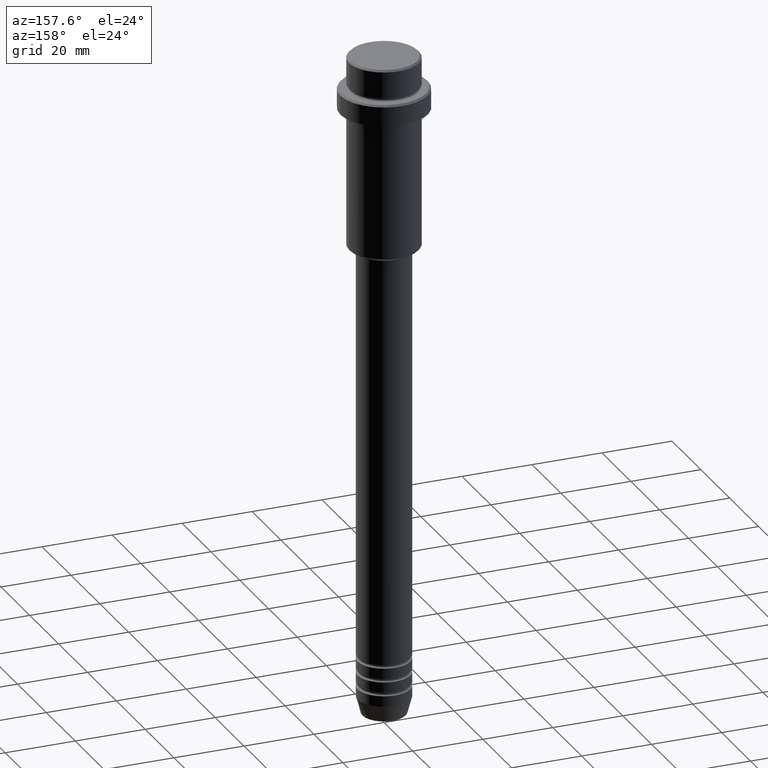
[diagram: clean part render]
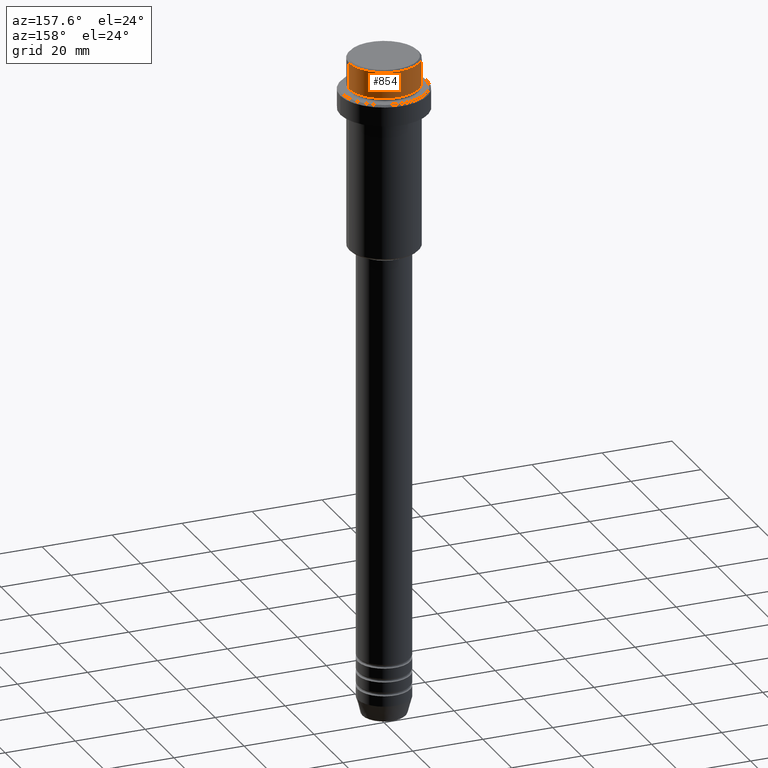
[diagram: same view with one face highlighted and labeled with its STEP entity id]
A machine part, auxiliary view. The second image highlights one B-rep face of the part: STEP entity #854.
In plain terms, the highlighted cylindrical surface (partial cylindrical patch) has radius 10 mm, axis along (-0, -0, 1).
Its self-contained STEP definition (entity closure, byte-faithful):
#115 = LINE ( 'NONE', #766, #978 ) ;
#148 = VERTEX_POINT ( 'NONE', #1083 ) ;
#158 = CIRCLE ( 'NONE', #1385, 9.999999999999998224 ) ;
#211 = DIRECTION ( 'NONE',  ( -0.000000000000000000, -0.000000000000000000, 1.000000000000000000 ) ) ;
#229 = DIRECTION ( 'NONE',  ( -0.000000000000000000, -0.000000000000000000, 1.000000000000000000 ) ) ;
#239 = CYLINDRICAL_SURFACE ( 'NONE', #1091, 9.999999999999998224 ) ;
#300 = CARTESIAN_POINT ( 'NONE',  ( 9.999999999999998224, 0.000000000000000000, -7.999999999999998224 ) ) ;
#333 = CARTESIAN_POINT ( 'NONE',  ( 9.999999999999998224, 0.000000000000000000, 0.000000000000000000 ) ) ;
#391 = EDGE_CURVE ( 'NONE', #148, #1343, #115, .T. ) ;
#458 = CARTESIAN_POINT ( 'NONE',  ( 0.000000000000000000, 0.000000000000000000, 0.000000000000000000 ) ) ;
#483 = ORIENTED_EDGE ( 'NONE', *, *, #761, .T. ) ;
#547 = DIRECTION ( 'NONE',  ( 1.000000000000000000, 0.000000000000000000, 0.000000000000000000 ) ) ;
#553 = CARTESIAN_POINT ( 'NONE',  ( 0.000000000000000000, 0.000000000000000000, -0.4999999999999970024 ) ) ;
#575 = FACE_OUTER_BOUND ( 'NONE', #1266, .T. ) ;
#590 = DIRECTION ( 'NONE',  ( 1.000000000000000000, 0.000000000000000000, 0.000000000000000000 ) ) ;
#598 = LINE ( 'NONE', #333, #641 ) ;
#641 = VECTOR ( 'NONE', #853, 1000.000000000000000 ) ;
#654 = DIRECTION ( 'NONE',  ( 1.000000000000000000, 0.000000000000000000, 0.000000000000000000 ) ) ;
#689 = DIRECTION ( 'NONE',  ( -0.000000000000000000, -0.000000000000000000, 1.000000000000000000 ) ) ;
#691 = EDGE_CURVE ( 'NONE', #1072, #948, #598, .T. ) ;
#710 = EDGE_CURVE ( 'NONE', #1072, #148, #960, .T. ) ;
#725 = AXIS2_PLACEMENT_3D ( 'NONE', #1401, #211, #654 ) ;
#761 = EDGE_CURVE ( 'NONE', #1343, #948, #158, .T. ) ;
#766 = CARTESIAN_POINT ( 'NONE',  ( -9.999999999999998224, 1.224646799147353059E-15, 0.000000000000000000 ) ) ;
#853 = DIRECTION ( 'NONE',  ( -0.000000000000000000, -0.000000000000000000, 1.000000000000000000 ) ) ;
#854 = ADVANCED_FACE ( 'NONE', ( #575 ), #239, .T. ) ;
#910 = CARTESIAN_POINT ( 'NONE',  ( 9.999999999999998224, 0.000000000000000000, -0.4999999999999970024 ) ) ;
#948 = VERTEX_POINT ( 'NONE', #910 ) ;
#953 = ORIENTED_EDGE ( 'NONE', *, *, #710, .T. ) ;
#960 = CIRCLE ( 'NONE', #725, 9.999999999999998224 ) ;
#974 = ORIENTED_EDGE ( 'NONE', *, *, #391, .T. ) ;
#978 = VECTOR ( 'NONE', #229, 1000.000000000000000 ) ;
#983 = DIRECTION ( 'NONE',  ( 0.000000000000000000, 0.000000000000000000, -1.000000000000000000 ) ) ;
#1072 = VERTEX_POINT ( 'NONE', #300 ) ;
#1083 = CARTESIAN_POINT ( 'NONE',  ( -9.999999999999998224, 1.224646799147353059E-15, -7.999999999999998224 ) ) ;
#1091 = AXIS2_PLACEMENT_3D ( 'NONE', #458, #689, #590 ) ;
#1266 = EDGE_LOOP ( 'NONE', ( #953, #974, #483, #1363 ) ) ;
#1343 = VERTEX_POINT ( 'NONE', #1414 ) ;
#1363 = ORIENTED_EDGE ( 'NONE', *, *, #691, .F. ) ;
#1385 = AXIS2_PLACEMENT_3D ( 'NONE', #553, #983, #547 ) ;
#1401 = CARTESIAN_POINT ( 'NONE',  ( 0.000000000000000000, 0.000000000000000000, -7.999999999999998224 ) ) ;
#1414 = CARTESIAN_POINT ( 'NONE',  ( -9.999999999999998224, 1.224646799147353059E-15, -0.4999999999999970024 ) ) ;